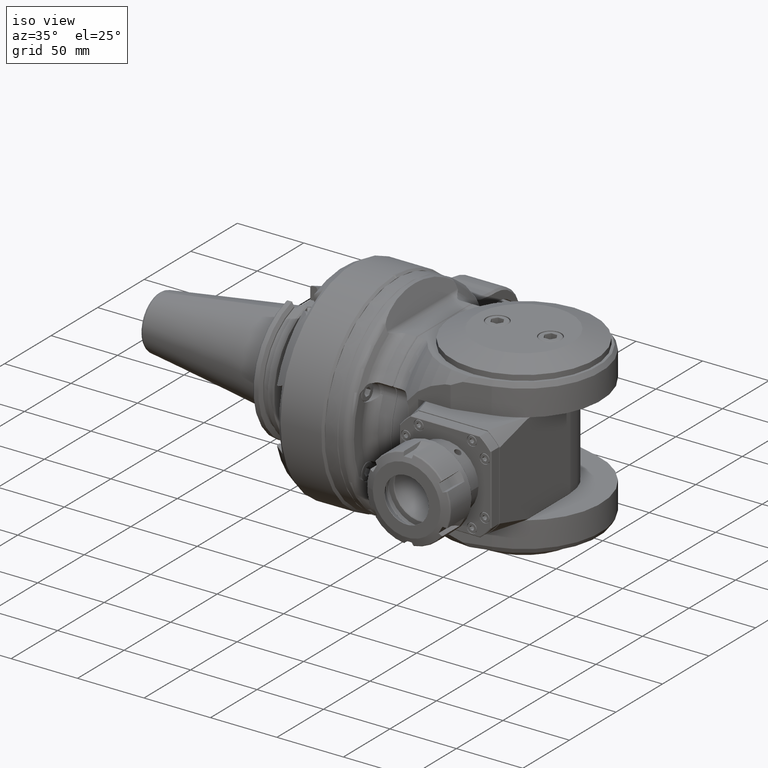
[diagram: clean part render]
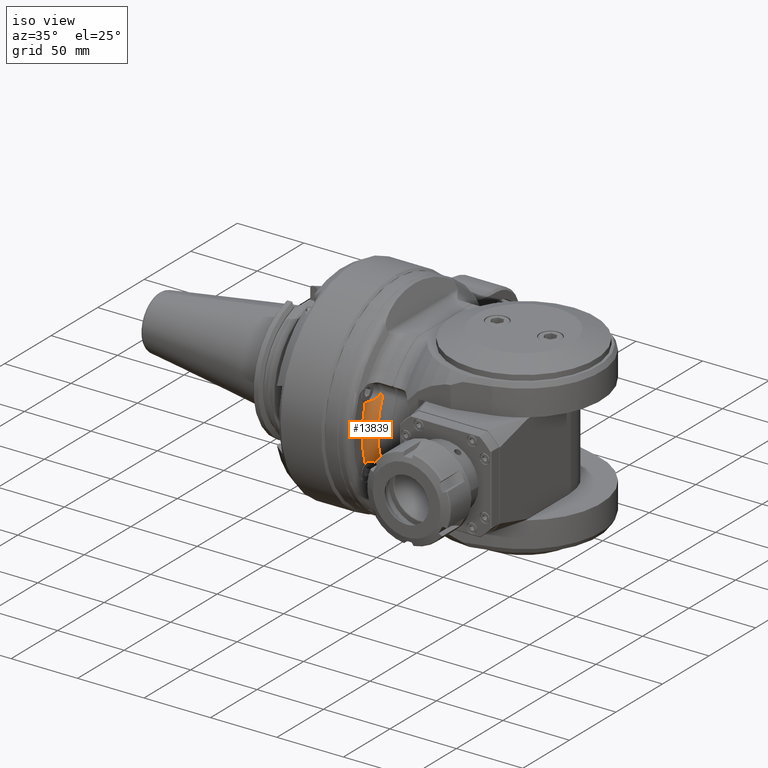
[diagram: same view with one face highlighted and labeled with its STEP entity id]
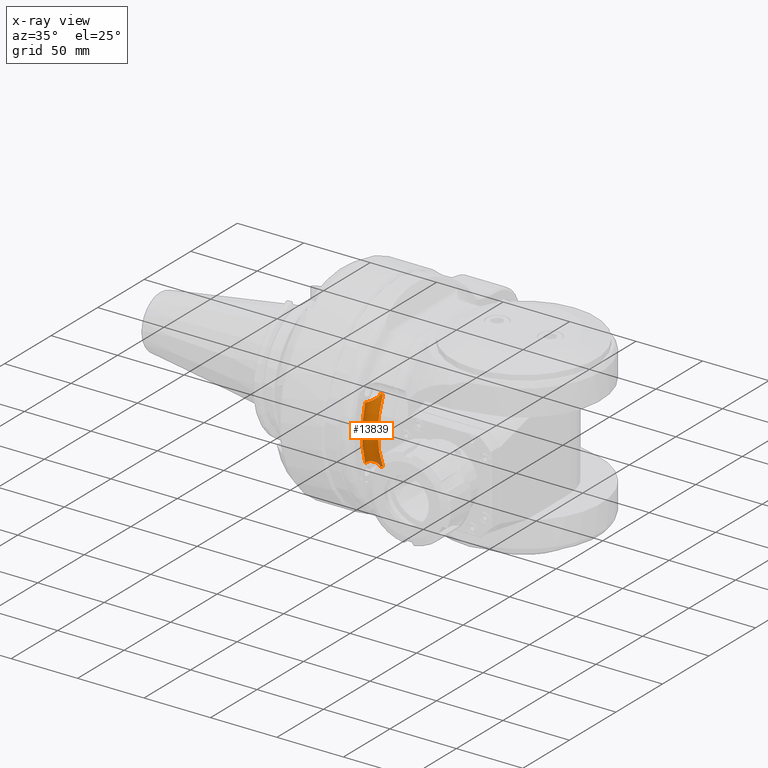
[diagram: x-ray of the same camera — body ghosted, the highlighted face saturated]
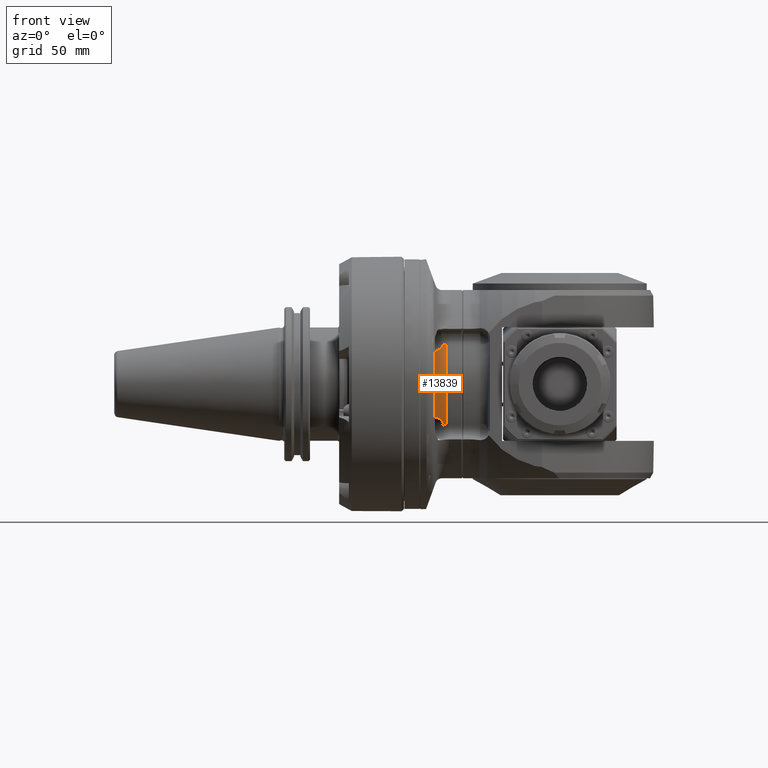
[diagram: same view with one face highlighted and labeled with its STEP entity id]
A machine part, iso view. The second image highlights one B-rep face of the part: STEP entity #13839.
The next image is the same camera in x-ray: the body ghosted, the highlighted face saturated — about 4% of this face is hidden behind the body in this view.
A second angle (front view) of the same face is appended — the face is thin or edge-on in the first view.
In plain terms, the highlighted toroidal blend (fillet) surface has major radius 64 mm and minor (blend) radius 7 mm.
Its self-contained STEP definition (entity closure, byte-faithful):
#354=TOROIDAL_SURFACE('',#14766,64.,7.);
#1071=B_SPLINE_CURVE_WITH_KNOTS('',3,(#20754,#20755,#20756,#20757,#20758,
#20759,#20760,#20761,#20762,#20763,#20764,#20765,#20766,#20767,#20768,#20769,
#20770,#20771,#20772,#20773,#20774,#20775,#20776,#20777,#20778,#20779,#20780,
#20781,#20782),.UNSPECIFIED.,.F.,.F.,(4,2,2,2,2,2,2,2,2,3,2,2,2,4),(-0.590602503440903,
-0.580687156878691,-0.493692822664889,-0.38723552128867,-0.218322890176088,
-0.126772684774654,-0.055326446342018,-0.0207549548020462,-0.00836286061301621,
0.,0.00501098868715211,0.0148674360467878,0.0300836749136071,0.0437694626094802),
 .UNSPECIFIED.);
#1072=B_SPLINE_CURVE_WITH_KNOTS('',3,(#20792,#20793,#20794,#20795,#20796,
#20797,#20798,#20799,#20800,#20801,#20802,#20803,#20804,#20805,#20806,#20807,
#20808,#20809,#20810,#20811,#20812,#20813,#20814,#20815,#20816),
 .UNSPECIFIED.,.F.,.F.,(4,3,3,3,3,3,3,3,4),(0.,0.04450193910999,0.21082256720949,
0.2473593361246,0.4491073703749,0.6499086007528,0.8500922333318,0.950042526857,
1.),.UNSPECIFIED.);
#1073=B_SPLINE_CURVE_WITH_KNOTS('',3,(#20818,#20819,#20820,#20821),
 .UNSPECIFIED.,.F.,.F.,(4,4),(0.,1.),.UNSPECIFIED.);
#1074=B_SPLINE_CURVE_WITH_KNOTS('',3,(#20826,#20827,#20828,#20829,#20830,
#20831),.UNSPECIFIED.,.F.,.F.,(4,2,4),(1.67907283421573,1.71155326321785,
1.77501751077023),.UNSPECIFIED.);
#1075=B_SPLINE_CURVE_WITH_KNOTS('',3,(#20832,#20833,#20834,#20835,#20836,
#20837,#20838,#20839,#20840,#20841,#20842,#20843,#20844,#20845,#20846,#20847,
#20848,#20849,#20850,#20851,#20852,#20853,#20854,#20855,#20856,#20857,#20858,
#20859,#20860),.UNSPECIFIED.,.F.,.F.,(4,2,2,2,2,2,2,2,3,2,2,2,2,4),(1.77501751077023,
1.78321336094958,1.87331859389331,2.01948917673279,2.10566755325787,2.1769696701166,
2.19218590898547,2.20204235634659,2.20705334503401,2.21541620564729,2.2278082998373,
2.26237979137879,2.33382602981701,2.338168925707),.UNSPECIFIED.);
#1280=FACE_OUTER_BOUND('',#2136,.T.);
#2136=EDGE_LOOP('',(#9419,#9420,#9421,#9422,#9423,#9424,#9425,#9426));
#5072=CIRCLE('',#14760,7.);
#5076=CIRCLE('',#14767,57.);
#5077=CIRCLE('',#14768,64.);
#5818=VERTEX_POINT('',#20636);
#5831=VERTEX_POINT('',#20721);
#5834=VERTEX_POINT('',#20752);
#5837=VERTEX_POINT('',#20790);
#5838=VERTEX_POINT('',#20791);
#5839=VERTEX_POINT('',#20817);
#5840=VERTEX_POINT('',#20823);
#5841=VERTEX_POINT('',#20825);
#7237=EDGE_CURVE('',#5831,#5818,#5072,.T.);
#7241=EDGE_CURVE('',#5834,#5831,#1071,.T.);
#7245=EDGE_CURVE('',#5837,#5838,#1072,.T.);
#7246=EDGE_CURVE('',#5838,#5839,#1073,.T.);
#7247=EDGE_CURVE('',#5839,#5818,#5076,.T.);
#7248=EDGE_CURVE('',#5840,#5834,#5077,.T.);
#7249=EDGE_CURVE('',#5840,#5841,#1074,.T.);
#7250=EDGE_CURVE('',#5841,#5837,#1075,.T.);
#9419=ORIENTED_EDGE('',*,*,#7245,.T.);
#9420=ORIENTED_EDGE('',*,*,#7246,.T.);
#9421=ORIENTED_EDGE('',*,*,#7247,.T.);
#9422=ORIENTED_EDGE('',*,*,#7237,.F.);
#9423=ORIENTED_EDGE('',*,*,#7241,.F.);
#9424=ORIENTED_EDGE('',*,*,#7248,.F.);
#9425=ORIENTED_EDGE('',*,*,#7249,.T.);
#9426=ORIENTED_EDGE('',*,*,#7250,.T.);
#13839=ADVANCED_FACE('',(#1280),#354,.F.);
#14760=AXIS2_PLACEMENT_3D('',#20734,#16422,#16423);
#14766=AXIS2_PLACEMENT_3D('',#20789,#16435,#16436);
#14767=AXIS2_PLACEMENT_3D('',#20822,#16437,#16438);
#14768=AXIS2_PLACEMENT_3D('',#20824,#16439,#16440);
#16422=DIRECTION('center_axis',(-0.902977658828695,-1.11634625862099E-14,
0.429687499999998));
#16423=DIRECTION('ref_axis',(-0.41332264265719,0.273350449243688,-0.868587315682857));
#16435=DIRECTION('center_axis',(0.,-1.,0.));
#16436=DIRECTION('ref_axis',(-0.00806306558219917,0.,0.999967492958355));
#16437=DIRECTION('center_axis',(0.,1.,0.));
#16438=DIRECTION('ref_axis',(-0.429687499999998,0.,0.902977658828695));
#16439=DIRECTION('center_axis',(0.,1.,0.));
#16440=DIRECTION('ref_axis',(0.,0.,1.));
#20636=CARTESIAN_POINT('',(24.4921875,70.,51.46972655324));
#20721=CARTESIAN_POINT('',(24.6067415014,71.91345314471,51.71045895526));
#20734=CARTESIAN_POINT('Origin',(27.5,70.,57.79057016504));
#20752=CARTESIAN_POINT('',(20.7880693986,77.,60.52979572639));
#20754=CARTESIAN_POINT('Ctrl Pts',(20.7880693985928,77.,60.5297957263929));
#20755=CARTESIAN_POINT('Ctrl Pts',(20.7598008705764,77.,60.4597482151992));
#20756=CARTESIAN_POINT('Ctrl Pts',(20.7326207832604,76.9987808129667,60.3890099015783));
#20757=CARTESIAN_POINT('Ctrl Pts',(20.4779237267159,76.9746606375215,59.6910380363732));
#20758=CARTESIAN_POINT('Ctrl Pts',(20.3464608729609,76.8578380620528,59.0428471547849));
#20759=CARTESIAN_POINT('Ctrl Pts',(20.2628755962811,76.4035006305078,57.6003970540733));
#20760=CARTESIAN_POINT('Ctrl Pts',(20.3589361102602,76.0329706741128,56.8397785582152));
#20761=CARTESIAN_POINT('Ctrl Pts',(20.8788658329206,74.8866200539562,55.0298235727592));
#20762=CARTESIAN_POINT('Ctrl Pts',(21.4426265952186,74.0353491529099,54.1364052343532));
#20763=CARTESIAN_POINT('Ctrl Pts',(22.3740611252619,72.9308477696527,53.1089634304301));
#20764=CARTESIAN_POINT('Ctrl Pts',(22.7179547515947,72.5774746487905,52.8081088342798));
#20765=CARTESIAN_POINT('Ctrl Pts',(23.3224724727831,72.1131273103053,52.3650741532742));
#20766=CARTESIAN_POINT('Ctrl Pts',(23.5423049829889,71.9994173381371,52.2311882894835));
#20767=CARTESIAN_POINT('Ctrl Pts',(23.8202005288946,71.903367125782,52.074328875177));
#20768=CARTESIAN_POINT('Ctrl Pts',(23.9142858133867,71.8797244680102,52.0239699906836));
#20769=CARTESIAN_POINT('Ctrl Pts',(24.0478328608672,71.8615943178657,51.9567453369466));
#20770=CARTESIAN_POINT('Ctrl Pts',(24.0836424166655,71.8581300984406,51.9391062003691));
#20771=CARTESIAN_POINT('Ctrl Pts',(24.1447114896029,71.8547522261251,51.9097123607933));
#20772=CARTESIAN_POINT('Ctrl Pts',(24.1696310656659,71.8540496217811,51.8979017999038));
#20773=CARTESIAN_POINT('Ctrl Pts',(24.1948954846509,71.8540496217811,51.8861208078523));
#20774=CARTESIAN_POINT('Ctrl Pts',(24.2100338115439,71.8540496217811,51.8790616900905));
#20775=CARTESIAN_POINT('Ctrl Pts',(24.2251924746015,71.8543019607376,51.8720614846527));
#20776=CARTESIAN_POINT('Ctrl Pts',(24.2702410489991,71.8557975258602,51.8514606238501));
#20777=CARTESIAN_POINT('Ctrl Pts',(24.3004225184329,71.8577702485859,51.8379218110776));
#20778=CARTESIAN_POINT('Ctrl Pts',(24.3781111673649,71.8653832035558,51.8037670158901));
#20779=CARTESIAN_POINT('Ctrl Pts',(24.425613915163,71.8723867184683,51.7835260153914));
#20780=CARTESIAN_POINT('Ctrl Pts',(24.5167056145598,71.8901765552096,51.7459504593997));
#20781=CARTESIAN_POINT('Ctrl Pts',(24.5610279678157,71.9006694587435,51.7281889081665));
#20782=CARTESIAN_POINT('Ctrl Pts',(24.6067415013988,71.9134531447135,51.7104589552593));
#20789=CARTESIAN_POINT('Origin',(0.,70.,0.));
#20790=CARTESIAN_POINT('',(-25.5001358514303,72.3544057569287,51.4334660783052));
#20791=CARTESIAN_POINT('',(-24.53280802769,70.11395007151,51.45140493746));
#20792=CARTESIAN_POINT('Ctrl Pts',(-25.5001361605058,72.3544050981666,51.4334655644891));
#20793=CARTESIAN_POINT('Ctrl Pts',(-25.4837647053667,72.3222946850526,51.4287819459712));
#20794=CARTESIAN_POINT('Ctrl Pts',(-25.4674273080804,72.2901589743412,51.4243616111966));
#20795=CARTESIAN_POINT('Ctrl Pts',(-25.4511868045409,72.2579396463937,51.4201491075778));
#20796=CARTESIAN_POINT('Ctrl Pts',(-25.390489882039,72.1375237955714,51.4044053835568));
#20797=CARTESIAN_POINT('Ctrl Pts',(-25.3311501138086,72.0159368658835,51.3915722079145));
#20798=CARTESIAN_POINT('Ctrl Pts',(-25.2730300728214,71.8935362260919,51.3818321675864));
#20799=CARTESIAN_POINT('Ctrl Pts',(-25.2602624532474,71.8666476558512,51.3796925075408));
#20800=CARTESIAN_POINT('Ctrl Pts',(-25.2475536093876,71.8397198706753,51.3777019432954));
#20801=CARTESIAN_POINT('Ctrl Pts',(-25.2349019387129,71.8127567413685,51.3758621178199));
#20802=CARTESIAN_POINT('Ctrl Pts',(-25.1650421847064,71.6638722478455,51.3657030045742));
#20803=CARTESIAN_POINT('Ctrl Pts',(-25.0969249256232,71.5139106083372,51.3601383524003));
#20804=CARTESIAN_POINT('Ctrl Pts',(-25.0307324155601,71.3630687837585,51.3590854932685));
#20805=CARTESIAN_POINT('Ctrl Pts',(-24.9648505470609,71.2129348601224,51.3580375752065));
#20806=CARTESIAN_POINT('Ctrl Pts',(-24.9008766476883,71.0619286386359,51.3614617743922));
#20807=CARTESIAN_POINT('Ctrl Pts',(-24.8388652869533,70.9103635640628,51.3693641548288));
#20808=CARTESIAN_POINT('Ctrl Pts',(-24.7770446525391,70.7592646532491,51.3772422301715));
#20809=CARTESIAN_POINT('Ctrl Pts',(-24.7171740824912,70.6076103287285,51.3895700996574));
#20810=CARTESIAN_POINT('Ctrl Pts',(-24.65932464355,70.4556687985368,51.4063270219368));
#20811=CARTESIAN_POINT('Ctrl Pts',(-24.6304408215913,70.3798054507413,51.4146936365237));
#20812=CARTESIAN_POINT('Ctrl Pts',(-24.6020608054801,70.3038705245102,51.4241642844389));
#20813=CARTESIAN_POINT('Ctrl Pts',(-24.5741995480134,70.227894932548,51.4347329215443));
#20814=CARTESIAN_POINT('Ctrl Pts',(-24.5602738458215,70.1899205708818,51.4400153713074));
#20815=CARTESIAN_POINT('Ctrl Pts',(-24.546477753765,70.151936048519,51.4455721496998));
#20816=CARTESIAN_POINT('Ctrl Pts',(-24.532808027689,70.11395007151,51.4514049374578));
#20817=CARTESIAN_POINT('',(-24.4921875,70.,51.46972655324));
#20818=CARTESIAN_POINT('Ctrl Pts',(-24.532808027689,70.11395007151,51.4514049374578));
#20819=CARTESIAN_POINT('Ctrl Pts',(-24.5191407742029,70.0759663031956,51.4572365860852));
#20820=CARTESIAN_POINT('Ctrl Pts',(-24.5053051681014,70.03811208121,51.463484429793));
#20821=CARTESIAN_POINT('Ctrl Pts',(-24.4921874999983,70.,51.4697265532364));
#20822=CARTESIAN_POINT('Origin',(0.,70.,0.));
#20823=CARTESIAN_POINT('',(-20.7880693986,77.,60.52979572639));
#20824=CARTESIAN_POINT('Origin',(0.,77.,0.));
#20825=CARTESIAN_POINT('',(-20.2975687514,76.5200216055787,58.00369837035));
#20826=CARTESIAN_POINT('Ctrl Pts',(-20.7880693985928,77.,60.5297957263929));
#20827=CARTESIAN_POINT('Ctrl Pts',(-20.675430055138,76.9999999999999,60.2506830089953));
#20828=CARTESIAN_POINT('Ctrl Pts',(-20.5818767612913,76.9806354484541,59.9650717870824));
#20829=CARTESIAN_POINT('Ctrl Pts',(-20.3628803876302,76.8663973880249,59.1081173546371));
#20830=CARTESIAN_POINT('Ctrl Pts',(-20.2975687514,76.7203095984585,58.5468097339637));
#20831=CARTESIAN_POINT('Ctrl Pts',(-20.2975687514,76.5200216055787,58.00369837035));
#20832=CARTESIAN_POINT('Ctrl Pts',(-20.2975687514,76.5200216055787,58.00369837035));
#20833=CARTESIAN_POINT('Ctrl Pts',(-20.2975687514,76.4941561703821,57.9335603077628));
#20834=CARTESIAN_POINT('Ctrl Pts',(-20.2986619403906,76.4673866121986,57.8637257864779));
#20835=CARTESIAN_POINT('Ctrl Pts',(-20.3245449828859,76.1359002062334,57.0300939135669));
#20836=CARTESIAN_POINT('Ctrl Pts',(-20.4751520648762,75.7345529187102,56.3238925099904));
#20837=CARTESIAN_POINT('Ctrl Pts',(-21.0821483270703,74.5663927387507,54.6606415370054));
#20838=CARTESIAN_POINT('Ctrl Pts',(-21.6483755042224,73.7649419089776,53.8749959828064));
#20839=CARTESIAN_POINT('Ctrl Pts',(-22.5304501637791,72.7678578197559,52.9659554185136));
#20840=CARTESIAN_POINT('Ctrl Pts',(-22.8697495472241,72.4409462640005,52.6868958404538));
#20841=CARTESIAN_POINT('Ctrl Pts',(-23.4703237999725,72.0258164124032,52.2699918837083));
#20842=CARTESIAN_POINT('Ctrl Pts',(-23.706556151697,71.9256406804345,52.1334999260444));
#20843=CARTESIAN_POINT('Ctrl Pts',(-23.9680003655335,71.8723867184683,51.9969147180591));
#20844=CARTESIAN_POINT('Ctrl Pts',(-24.0140400491996,71.8653832035558,51.9735361664036));
#20845=CARTESIAN_POINT('Ctrl Pts',(-24.0901414412062,71.8577702485858,51.9359774877534));
#20846=CARTESIAN_POINT('Ctrl Pts',(-24.119913048091,71.8557975258602,51.9215597219087));
#20847=CARTESIAN_POINT('Ctrl Pts',(-24.1646508884872,71.8543019607377,51.9002924898947));
#20848=CARTESIAN_POINT('Ctrl Pts',(-24.179757157757,71.8540496217811,51.8931799256146));
#20849=CARTESIAN_POINT('Ctrl Pts',(-24.1948954846509,71.8540496217811,51.8861208078523));
#20850=CARTESIAN_POINT('Ctrl Pts',(-24.2201599036366,71.8540496217811,51.8743398158005));
#20851=CARTESIAN_POINT('Ctrl Pts',(-24.2452253129089,71.8547522261252,51.8628419952354));
#20852=CARTESIAN_POINT('Ctrl Pts',(-24.3069967437948,71.8581300984406,51.8349543671467));
#20853=CARTESIAN_POINT('Ctrl Pts',(-24.3435270451262,71.8615943178655,51.8188608743547));
#20854=CARTESIAN_POINT('Ctrl Pts',(-24.4808665049944,71.8797244680103,51.7597690752242));
#20855=CARTESIAN_POINT('Ctrl Pts',(-24.5799205037478,71.9033671257821,51.7200656328497));
#20856=CARTESIAN_POINT('Ctrl Pts',(-24.878709600129,71.9994173381391,51.6080125821181));
#20857=CARTESIAN_POINT('Ctrl Pts',(-25.1225777358651,72.1131273103095,51.5256712836156));
#20858=CARTESIAN_POINT('Ctrl Pts',(-25.461060676091,72.3290368233033,51.4427616309839));
#20859=CARTESIAN_POINT('Ctrl Pts',(-25.4805511271853,72.3416194817665,51.4380787807092));
#20860=CARTESIAN_POINT('Ctrl Pts',(-25.5001356747271,72.3544060689427,51.4334661923202));